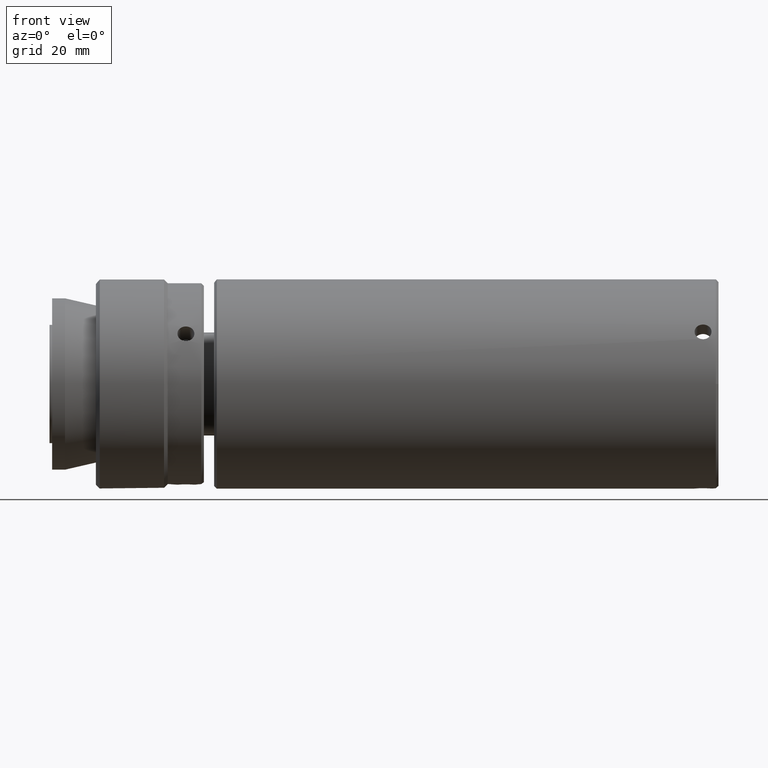
[diagram: clean part render]
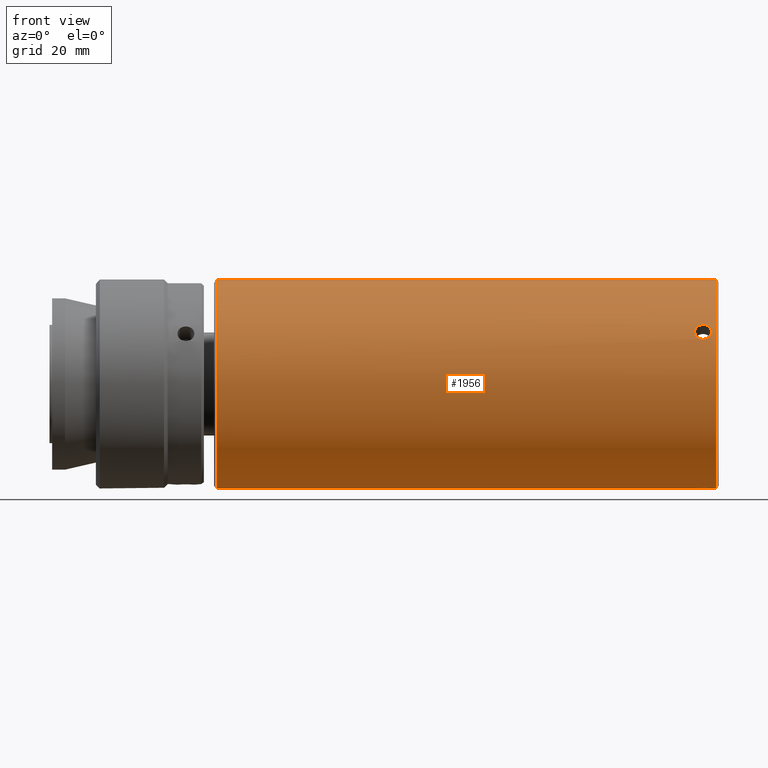
[diagram: same view with one face highlighted and labeled with its STEP entity id]
A machine part, front view. The second image highlights one B-rep face of the part: STEP entity #1956.
In plain terms, the highlighted cylindrical surface (bore or boss wall) has radius 20.32 mm, axis along (-1, -0, -0).
Its self-contained STEP definition (entity closure, byte-faithful):
#7 = CARTESIAN_POINT ( 'NONE',  ( 118.7072311837351322, 68.59737019679272407, 115.8449034724322360 ) ) ;
#12 = FACE_BOUND ( 'NONE', #929, .T. ) ;
#18 = CARTESIAN_POINT ( 'NONE',  ( 120.8718278882860631, 51.13147294982184832, 86.69250009352548147 ) ) ;
#20 = CARTESIAN_POINT ( 'NONE',  ( 118.1268657670961773, 68.38432158464294730, 116.2727497347218275 ) ) ;
#32 = CARTESIAN_POINT ( 'NONE',  ( 120.4467397029240914, 67.21070023097290402, 118.2703816317779655 ) ) ;
#35 = CARTESIAN_POINT ( 'NONE',  ( 119.9714690924201506, 33.54277087396467039, 118.4815909199031836 ) ) ;
#50 = CARTESIAN_POINT ( 'NONE',  ( 121.0894954226809119, 50.30531704458957165, 86.67589676093889750 ) ) ;
#62 = CARTESIAN_POINT ( 'NONE',  ( 121.0456642670792178, 49.87074476537179635, 86.67957502918582691 ) ) ;
#69 = CIRCLE ( 'NONE', #865, 20.32000000000000384 ) ;
#124 = DIRECTION ( 'NONE',  ( 1.000000000000000000, 0.000000000000000000, 0.000000000000000000 ) ) ;
#146 = CARTESIAN_POINT ( 'NONE',  ( 117.9565416238172588, 49.57385941143442665, 86.68882041243837477 ) ) ;
#160 = CARTESIAN_POINT ( 'NONE',  ( 118.4340700855504736, 51.61803545890843026, 86.71825480698016975 ) ) ;
#161 = CARTESIAN_POINT ( 'NONE',  ( 118.0075197720956481, 68.30192213605809570, 116.4316061374609319 ) ) ;
#176 = CARTESIAN_POINT ( 'NONE',  ( 117.9976874564484035, 32.30625612533258817, 116.4285868911196218 ) ) ;
#186 = CARTESIAN_POINT ( 'NONE',  ( 119.3304826352598553, 51.95531574260970586, 86.74299809688231733 ) ) ;
#190 = CARTESIAN_POINT ( 'NONE',  ( 120.8714710732661359, 32.30871195312121102, 116.4316061374611593 ) ) ;
#196 = CARTESIAN_POINT ( 'NONE',  ( 120.2707656055531942, 51.74671307544240051, 86.72691544217251192 ) ) ;
#203 = DIRECTION ( 'NONE',  ( -1.000000000000000000, -0.000000000000000000, -0.000000000000000000 ) ) ;
#212 = CARTESIAN_POINT ( 'NONE',  ( 119.0069658153588392, 68.65145305228138284, 115.7325212120407940 ) ) ;
#216 = CARTESIAN_POINT ( 'NONE',  ( 118.7077391347828410, 32.01315567742395274, 115.8446795564250920 ) ) ;
#225 = CARTESIAN_POINT ( 'NONE',  ( 118.3489080810597898, 33.36199345545057326, 118.2133895101488577 ) ) ;
#231 = CARTESIAN_POINT ( 'NONE',  ( 119.6575838506477396, 67.01984169607328568, 118.5512879561751589 ) ) ;
#272 = CARTESIAN_POINT ( 'NONE',  ( 24.93949542268093111, 50.30531704458957165, 127.3158967609388839 ) ) ;
#297 = DIRECTION ( 'NONE',  ( 0.000000000000000000, 0.000000000000000000, 1.000000000000000000 ) ) ;
#299 = ORIENTED_EDGE ( 'NONE', *, *, #1804, .T. ) ;
#317 = CARTESIAN_POINT ( 'NONE',  ( 119.0124976409045985, 51.90272840158696965, 86.73877163156006986 ) ) ;
#320 = CARTESIAN_POINT ( 'NONE',  ( 118.6129948270128409, 67.14320043448519471, 118.3709432283854852 ) ) ;
#342 = CARTESIAN_POINT ( 'NONE',  ( 119.6575796634431583, 31.94079217820274508, 115.6934036699249617 ) ) ;
#352 = CARTESIAN_POINT ( 'NONE',  ( 119.8666726719698232, 68.64718845520152968, 115.7411009028114393 ) ) ;
#357 = CARTESIAN_POINT ( 'NONE',  ( 118.6108225196016264, 33.46671426794760151, 118.3698778718645741 ) ) ;
#365 = CARTESIAN_POINT ( 'NONE',  ( 117.8333206490959526, 50.73986847267234168, 86.67957455436048519 ) ) ;
#366 = CARTESIAN_POINT ( 'NONE',  ( 120.8714716896812860, 67.47518419493671615, 117.8635583439184558 ) ) ;
#371 = FACE_BOUND ( 'NONE', #1859, .T. ) ;
#377 = CARTESIAN_POINT ( 'NONE',  ( 120.9230909573151109, 67.52672286603609564, 117.7817936761485385 ) ) ;
#380 = CARTESIAN_POINT ( 'NONE',  ( 119.8720250300029306, 31.95918103689791323, 115.7325212120409645 ) ) ;
#386 = CARTESIAN_POINT ( 'NONE',  ( 120.8813033889133806, 68.30437796384667593, 116.4285868911193802 ) ) ;
#389 = CARTESIAN_POINT ( 'NONE',  ( 117.7894208348721889, 32.76092232305857976, 117.2481258283786900 ) ) ;
#449 = VERTEX_POINT ( 'NONE', #2068 ) ;
#463 = AXIS2_PLACEMENT_3D ( 'NONE', #1957, #203, #1222 ) ;
#483 = CARTESIAN_POINT ( 'NONE',  ( 118.7077415013084760, 67.11466775622608338, 118.4129827765911216 ) ) ;
#492 = CARTESIAN_POINT ( 'NONE',  ( 118.4243992763405515, 48.98685960731095435, 86.71814326143562823 ) ) ;
#493 = CARTESIAN_POINT ( 'NONE',  ( 117.9559003655719351, 68.25688115327140792, 116.5171223548337167 ) ) ;
#504 = CARTESIAN_POINT ( 'NONE',  ( 120.6826289867723432, 51.39558386239109922, 86.70502386871670808 ) ) ;
#508 = CARTESIAN_POINT ( 'NONE',  ( 119.0069628222838674, 33.56610984304960255, 118.5158036839906828 ) ) ;
#516 = CARTESIAN_POINT ( 'NONE',  ( 119.2214111819185831, 68.66984191097647283, 115.6934036699248907 ) ) ;
#528 = CARTESIAN_POINT ( 'NONE',  ( 121.0369112455124849, 50.73229826936243114, 86.68010976198040396 ) ) ;
#529 = CARTESIAN_POINT ( 'NONE',  ( 121.0368068498771237, 67.68555912226949545, 117.5239918371575527 ) ) ;
#533 = CARTESIAN_POINT ( 'NONE',  ( 119.3304476231605378, 31.94079250056046249, 115.6934043505735445 ) ) ;
#539 = CARTESIAN_POINT ( 'NONE',  ( 119.6556698123283695, 48.66601275630760171, 86.74211876809039268 ) ) ;
#544 = CARTESIAN_POINT ( 'NONE',  ( 117.8330496369217144, 32.49404809526875226, 116.7785618110207793 ) ) ;
#554 = CARTESIAN_POINT ( 'NONE',  ( 121.0895700104896520, 67.84971176612071986, 117.2481258283783774 ) ) ;
#557 = CARTESIAN_POINT ( 'NONE',  ( 117.8421839954847172, 32.92507496690979707, 117.5239918371577801 ) ) ;
#626 = CARTESIAN_POINT ( 'NONE',  ( 117.8733160637268185, 68.16234517831325945, 116.6932642897763230 ) ) ;
#628 = CARTESIAN_POINT ( 'NONE',  ( 119.0123211888258083, 67.04982123387470949, 118.5078219593532367 ) ) ;
#632 = ORIENTED_EDGE ( 'NONE', *, *, #1833, .T. ) ;
#664 = CARTESIAN_POINT ( 'NONE',  ( 118.1267784325122818, 49.29988989082659145, 86.70058780051159886 ) ) ;
#665 = CARTESIAN_POINT ( 'NONE',  ( 117.7894208347638170, 67.95620530104763191, 117.0636736152249426 ) ) ;
#674 = CARTESIAN_POINT ( 'NONE',  ( 120.9224573967350125, 51.03675828489659949, 86.68881981399177050 ) ) ;
#675 = CARTESIAN_POINT ( 'NONE',  ( 121.0459412084400697, 68.11658599391053315, 116.7785618110204808 ) ) ;
#680 = FACE_OUTER_BOUND ( 'NONE', #1934, .T. ) ;
#692 = CARTESIAN_POINT ( 'NONE',  ( 119.6557528186057766, 33.58467859182457715, 118.5424586756731031 ) ) ;
#700 = CARTESIAN_POINT ( 'NONE',  ( 121.0893450459337970, 68.01116031139653728, 116.9684522105631999 ) ) ;
#704 = CARTESIAN_POINT ( 'NONE',  ( 121.0893450457171809, 32.81590920690327096, 117.3433293703231044 ) ) ;
#716 = CARTESIAN_POINT ( 'NONE',  ( 121.0459410824501276, 32.92764643970133420, 117.5295761518667064 ) ) ;
#722 = CARTESIAN_POINT ( 'NONE',  ( 120.2681683257601861, 67.14391982123171942, 118.3698778718643325 ) ) ;
#725 = CARTESIAN_POINT ( 'NONE',  ( 118.0075191556805549, 33.13544989424254794, 117.8635583439187258 ) ) ;
#800 = CARTESIAN_POINT ( 'NONE',  ( 121.9394954226808920, 50.30531704458957165, 127.3158967609388839 ) ) ;
#833 = CARTESIAN_POINT ( 'NONE',  ( 118.6133273032529445, 51.73764242043004202, 86.72635219610066315 ) ) ;
#845 = CARTESIAN_POINT ( 'NONE',  ( 119.2215311579888066, 48.65531444102606429, 86.74299841506618236 ) ) ;
#861 = CARTESIAN_POINT ( 'NONE',  ( 117.7896457994280013, 32.59947377778274813, 116.9684522105635267 ) ) ;
#865 = AXIS2_PLACEMENT_3D ( 'NONE', #2229, #1149, #297 ) ;
#868 = CARTESIAN_POINT ( 'NONE',  ( 120.5301782731784357, 68.49152023847582882, 116.0606758122832218 ) ) ;
#871 = B_SPLINE_CURVE_WITH_KNOTS ( 'NONE', 3,
 ( #1647, #1348, #1659, #628, #1673, #483, #320, #1464, #1694, #965, #1657, #1527, #1333, #665, #2188, #990, #626, #493, #161, #20, #1024, #1217, #904, #1050, #7, #212, #516, #1406, #1913, #352, #1037, #2109, #1737, #1772, #868, #1600, #386, #675, #700, #554, #2098, #529, #1232, #377, #366, #1062, #894, #1589, #32, #722, #1253, #1964, #231, #914 ),
 .UNSPECIFIED., .T., .F.,
 ( 4, 2, 2, 2, 2, 2, 2, 2, 2, 2, 2, 2, 2, 2, 2, 2, 2, 2, 2, 2, 2, 2, 2, 2, 2, 2, 4 ),
 ( 0.000000000000000000, 0.0003224790861425423454, 0.0006449581722850846908, 0.0009674372584276270904, 0.001289916344570169382, 0.001934874516855254181, 0.002579832689140338763, 0.002902311775282891571, 0.003224790861425443945, 0.003547269947567996753, 0.003869749033710548694, 0.004192228119853101502, 0.004514707205995654310, 0.005159665378280752987, 0.005482144464423301458, 0.005804623550565851664, 0.006127102636708400135, 0.006449581722850949474, 0.007094539895136034273, 0.007739498067421118205, 0.008061977153563680554, 0.008384456239706239433, 0.008706935325848800047, 0.009029414411991362396, 0.009351893498133923011, 0.009674372584276481890, 0.01031933075656159965 ),
 .UNSPECIFIED. ) ;
#874 = CARTESIAN_POINT ( 'NONE',  ( 120.1717596616266661, 32.01326389238654002, 115.8449034724324633 ) ) ;
#876 = ORIENTED_EDGE ( 'NONE', *, *, #2016, .T. ) ;
#880 = CARTESIAN_POINT ( 'NONE',  ( 118.3492194882549597, 51.54844255775852702, 86.71381512353968901 ) ) ;
#892 = CARTESIAN_POINT ( 'NONE',  ( 121.0894954226809261, 50.08732938884449482, 86.67589676093896855 ) ) ;
#894 = CARTESIAN_POINT ( 'NONE',  ( 120.6839874872470659, 67.33337132450473916, 118.0843468449278078 ) ) ;
#897 = CARTESIAN_POINT ( 'NONE',  ( 118.1268648295910992, 33.23182375909276942, 118.0143464374059050 ) ) ;
#904 = CARTESIAN_POINT ( 'NONE',  ( 118.4322528630535913, 68.52199954302345475, 115.9991444265320837 ) ) ;
#914 = CARTESIAN_POINT ( 'NONE',  ( 119.4394954226809205, 67.01984169607324304, 118.5512879561752015 ) ) ;
#929 = EDGE_LOOP ( 'NONE', ( #1678 ) ) ;
#956 = CARTESIAN_POINT ( 'NONE',  ( 119.4394954226809062, 33.59079239310604947, 118.5512879561754005 ) ) ;
#965 = CARTESIAN_POINT ( 'NONE',  ( 118.1206114225194170, 67.37421898642720919, 118.0221477082796042 ) ) ;
#990 = CARTESIAN_POINT ( 'NONE',  ( 117.8421841466998643, 68.11303616441469444, 116.7835798571910857 ) ) ;
#999 = CARTESIAN_POINT ( 'NONE',  ( 117.9980945368865406, 51.13657863601591202, 86.69193687347414823 ) ) ;
#1011 = CARTESIAN_POINT ( 'NONE',  ( 118.9077459708875608, 51.87101970908121729, 86.73626456699525988 ) ) ;
#1023 = CARTESIAN_POINT ( 'NONE',  ( 117.8001920772107383, 50.08913518645849905, 86.67677326894917655 ) ) ;
#1024 = CARTESIAN_POINT ( 'NONE',  ( 118.1950044796904535, 68.42222423546874666, 116.1983981419685108 ) ) ;
#1028 = CARTESIAN_POINT ( 'NONE',  ( 118.6129926773691636, 32.03529668859856372, 115.8904094168211572 ) ) ;
#1037 = CARTESIAN_POINT ( 'NONE',  ( 119.9714719282764861, 68.63349262923436811, 115.7698413802393134 ) ) ;
#1042 = FACE_BOUND ( 'NONE', #1834, .T. ) ;
#1050 = CARTESIAN_POINT ( 'NONE',  ( 118.6108246740796091, 68.57477556989132950, 115.8915628388127317 ) ) ;
#1055 = CARTESIAN_POINT ( 'NONE',  ( 119.0123181733919608, 31.96344563397773086, 115.7411009028116666 ) ) ;
#1062 = CARTESIAN_POINT ( 'NONE',  ( 120.7521260157706990, 67.37881033008653731, 118.0143464374056350 ) ) ;
#1065 = FACE_OUTER_BOUND ( 'NONE', #1893, .T. ) ;
#1073 = CARTESIAN_POINT ( 'NONE',  ( 117.9558998880467016, 33.08391122314318977, 117.7817936761487942 ) ) ;
#1078 = CARTESIAN_POINT ( 'NONE',  ( 120.4449120834299123, 48.99259207793586057, 86.71825523458485918 ) ) ;
#1123 = CARTESIAN_POINT ( 'NONE',  ( 24.93949542268093111, 50.30531704458957165, 106.9958967609388765 ) ) ;
#1149 = DIRECTION ( 'NONE',  ( -1.000000000000000000, -0.000000000000000000, -0.000000000000000000 ) ) ;
#1150 = CARTESIAN_POINT ( 'NONE',  ( 121.0894954226808977, 50.30531704458957165, 86.67589676093886908 ) ) ;
#1178 = CARTESIAN_POINT ( 'NONE',  ( 119.0049400278722231, 48.69914354262471079, 86.73930690394645637 ) ) ;
#1192 = CARTESIAN_POINT ( 'NONE',  ( 118.6082328714330600, 48.86391693342530118, 86.72691573888558025 ) ) ;
#1197 = CARTESIAN_POINT ( 'NONE',  ( 120.7583794228423955, 33.23641510275211175, 118.0221477082798032 ) ) ;
#1209 = CARTESIAN_POINT ( 'NONE',  ( 117.8001192016109684, 32.81635359110486405, 117.3423820547635898 ) ) ;
#1216 = CARTESIAN_POINT ( 'NONE',  ( 119.6574618725011163, 51.95531964819647186, 86.74299841506970665 ) ) ;
#1217 = CARTESIAN_POINT ( 'NONE',  ( 118.3489096313367810, 68.49161314177096926, 116.0604978054651184 ) ) ;
#1222 = DIRECTION ( 'NONE',  ( 0.000000000000000000, 0.000000000000000000, 1.000000000000000000 ) ) ;
#1230 = CARTESIAN_POINT ( 'NONE',  ( 120.5297623398878955, 49.06218371208611018, 86.71381560777498976 ) ) ;
#1232 = CARTESIAN_POINT ( 'NONE',  ( 121.0056750209583640, 67.63199812744205985, 117.6118523649155350 ) ) ;
#1235 = CARTESIAN_POINT ( 'NONE',  ( 120.4467379823082211, 32.08863454615580224, 115.9991444265323253 ) ) ;
#1244 = CARTESIAN_POINT ( 'NONE',  ( 121.0895700105979529, 32.65442878813161798, 117.0636736152251274 ) ) ;
#1250 = CARTESIAN_POINT ( 'NONE',  ( 120.8808873709592007, 49.47404051176854267, 86.69193751403474835 ) ) ;
#1253 = CARTESIAN_POINT ( 'NONE',  ( 120.1717620677204934, 67.11480890637191976, 118.4127751285856078 ) ) ;
#1333 = CARTESIAN_POINT ( 'NONE',  ( 117.7896457996446600, 67.79472488227602867, 117.3433293703228486 ) ) ;
#1348 = CARTESIAN_POINT ( 'NONE',  ( 119.3304512086975393, 67.01984169607322883, 118.5512879561752442 ) ) ;
#1357 = CARTESIAN_POINT ( 'NONE',  ( 118.1963712017711003, 49.21503968471964185, 86.70502444039320267 ) ) ;
#1364 = VERTEX_POINT ( 'NONE', #272 ) ;
#1373 = CARTESIAN_POINT ( 'NONE',  ( 121.0368066986619624, 32.49759792476457676, 116.7835798571913131 ) ) ;
#1387 = CARTESIAN_POINT ( 'NONE',  ( 120.5301767516192797, 33.36188725570936242, 118.2132223268987588 ) ) ;
#1395 = CARTESIAN_POINT ( 'NONE',  ( 121.0894954226809119, 50.30531704458957165, 86.67589676093889750 ) ) ;
#1399 = CARTESIAN_POINT ( 'NONE',  ( 120.8813028003603733, 33.13683789424859327, 117.8671966292693583 ) ) ;
#1405 = CARTESIAN_POINT ( 'NONE',  ( 119.2233188839721123, 51.94462112047604307, 86.74211875046495379 ) ) ;
#1406 = CARTESIAN_POINT ( 'NONE',  ( 119.5485432222012321, 68.66984158861880871, 115.6934043505732888 ) ) ;
#1410 = CARTESIAN_POINT ( 'NONE',  ( 119.5485396366642590, 33.59079239310603526, 118.5512879561754147 ) ) ;
#1417 = AXIS2_PLACEMENT_3D ( 'NONE', #1123, #124, #1515 ) ;
#1420 = CARTESIAN_POINT ( 'NONE',  ( 118.1950033581147750, 33.27726276467455335, 118.0843468449280493 ) ) ;
#1438 = CARTESIAN_POINT ( 'NONE',  ( 119.2214069947142292, 33.59079239310605658, 118.5512879561754147 ) ) ;
#1464 = CARTESIAN_POINT ( 'NONE',  ( 118.4336814301739338, 67.21007420423107703, 118.2713206803239103 ) ) ;
#1503 = VERTEX_POINT ( 'NONE', #1150 ) ;
#1515 = DIRECTION ( 'NONE',  ( 0.000000000000000000, 0.000000000000000000, 1.000000000000000000 ) ) ;
#1525 = CARTESIAN_POINT ( 'NONE',  ( 117.7894971550870622, 50.19629838249489495, 86.67589690161157989 ) ) ;
#1527 = CARTESIAN_POINT ( 'NONE',  ( 117.8330497629116707, 67.68298764947792279, 117.5295761518665074 ) ) ;
#1537 = CARTESIAN_POINT ( 'NONE',  ( 119.5485071173407334, 48.65531834654769483, 86.74299809688407947 ) ) ;
#1542 = CARTESIAN_POINT ( 'NONE',  ( 121.0056747816349372, 32.44828891086597622, 116.6932642897765646 ) ) ;
#1553 = CARTESIAN_POINT ( 'NONE',  ( 120.2681661712820755, 32.03585851928792749, 115.8915628388129875 ) ) ;
#1567 = CARTESIAN_POINT ( 'NONE',  ( 118.9075189170853974, 31.97714145994492441, 115.7698413802395834 ) ) ;
#1570 = ORIENTED_EDGE ( 'NONE', *, *, #1917, .T. ) ;
#1580 = CYLINDRICAL_SURFACE ( 'NONE', #463, 20.32000000000000384 ) ;
#1586 = CARTESIAN_POINT ( 'NONE',  ( 120.2656560451238761, 48.87298742969208831, 86.72635249907443722 ) ) ;
#1589 = CARTESIAN_POINT ( 'NONE',  ( 120.5300827643020511, 67.24864063372871215, 118.2133895101486019 ) ) ;
#1592 = CARTESIAN_POINT ( 'NONE',  ( 120.4453094151878361, 33.40055988494821548, 118.2713206803240951 ) ) ;
#1600 = CARTESIAN_POINT ( 'NONE',  ( 120.7583803413992030, 68.38878086720674787, 116.2648751087469066 ) ) ;
#1608 = CARTESIAN_POINT ( 'NONE',  ( 120.7579432496441569, 49.29020864637550403, 86.70069682392181676 ) ) ;
#1614 = EDGE_CURVE ( 'NONE', #1503, #1503, #2163, .T. ) ;
#1617 = CARTESIAN_POINT ( 'NONE',  ( 120.1709431884433883, 48.82235842906602841, 86.73003987931535619 ) ) ;
#1647 = CARTESIAN_POINT ( 'NONE',  ( 119.4394954226809205, 67.01984169607324304, 118.5512879561752015 ) ) ;
#1657 = CARTESIAN_POINT ( 'NONE',  ( 117.9976880450014107, 67.47379619493067082, 117.8671966292691593 ) ) ;
#1659 = CARTESIAN_POINT ( 'NONE',  ( 119.2232380267560927, 67.02595549735471536, 118.5424586756729326 ) ) ;
#1664 = VERTEX_POINT ( 'NONE', #956 ) ;
#1673 = CARTESIAN_POINT ( 'NONE',  ( 118.9075217529417046, 67.06786321521461502, 118.4815909199029136 ) ) ;
#1678 = ORIENTED_EDGE ( 'NONE', *, *, #1614, .T. ) ;
#1681 = B_SPLINE_CURVE_WITH_KNOTS ( 'NONE', 3,
 ( #1741, #1410, #692, #1752, #35, #2253, #2240, #1592, #1387, #1197, #1399, #716, #704, #1244, #1944, #1373, #1542, #1763, #190, #1929, #1903, #2102, #1235, #1553, #874, #380, #342, #533, #1775, #1055, #1567, #216, #1028, #2112, #1726, #2092, #176, #544, #861, #389, #1209, #557, #2123, #1073, #725, #897, #1420, #225, #1918, #357, #2079, #508, #1438, #2166 ),
 .UNSPECIFIED., .T., .F.,
 ( 4, 2, 2, 2, 2, 2, 2, 2, 2, 2, 2, 2, 2, 2, 2, 2, 2, 2, 2, 2, 2, 2, 2, 2, 2, 2, 4 ),
 ( 0.000000000000000000, 0.0003224790861425724320, 0.0006449581722851448640, 0.0009674372584277171876, 0.001289916344570289728, 0.001934874516855380599, 0.002579832689140471470, 0.002902311775283016905, 0.003224790861425562340, 0.003547269947568108209, 0.003869749033710653645, 0.004192228119853198647, 0.004514707205995744516, 0.005159665378280831917, 0.005482144464423375184, 0.005804623550565919318, 0.006127102636708462585, 0.006449581722851006720, 0.007094539895136059426, 0.007739498067421109531, 0.008061977153563658002, 0.008384456239706208208, 0.008706935325848758414, 0.009029414411991308620, 0.009351893498133857091, 0.009674372584276407297, 0.01031933075656149210 ),
 .UNSPECIFIED. ) ;
#1692 = CARTESIAN_POINT ( 'NONE',  ( 117.8737941042224691, 49.77356369947305126, 86.68261001376558283 ) ) ;
#1694 = CARTESIAN_POINT ( 'NONE',  ( 118.3488140937425754, 67.24874683346993720, 118.2132223268986024 ) ) ;
#1699 = VERTEX_POINT ( 'NONE', #800 ) ;
#1709 = CARTESIAN_POINT ( 'NONE',  ( 117.7894919584932154, 50.52327569928647932, 86.67589647964418020 ) ) ;
#1721 = CARTESIAN_POINT ( 'NONE',  ( 120.4546003137231338, 51.62376811643910912, 86.71814282662930395 ) ) ;
#1726 = CARTESIAN_POINT ( 'NONE',  ( 118.3488125721833910, 32.11911385070344949, 116.0606758122835203 ) ) ;
#1736 = CARTESIAN_POINT ( 'NONE',  ( 119.8740551164379724, 51.91148967144277293, 86.73930682800572356 ) ) ;
#1737 = CARTESIAN_POINT ( 'NONE',  ( 120.2659981679926489, 68.57533740058070748, 115.8904094168209440 ) ) ;
#1741 = CARTESIAN_POINT ( 'NONE',  ( 119.4394954226809062, 33.59079239310604237, 118.5512879561754289 ) ) ;
#1752 = CARTESIAN_POINT ( 'NONE',  ( 119.8666696565360041, 33.56081285530458302, 118.5078219593534072 ) ) ;
#1763 = CARTESIAN_POINT ( 'NONE',  ( 120.9230904797898205, 32.35375293590785617, 116.5171223548339725 ) ) ;
#1772 = CARTESIAN_POINT ( 'NONE',  ( 120.4453111567222976, 68.52249857940465461, 115.9981351560032294 ) ) ;
#1775 = CARTESIAN_POINT ( 'NONE',  ( 119.2232346344054150, 31.94538207013404474, 115.7031138858424981 ) ) ;
#1781 = CARTESIAN_POINT ( 'NONE',  ( 119.9712396612891609, 48.73961268101982824, 86.73626469992396437 ) ) ;
#1795 = CARTESIAN_POINT ( 'NONE',  ( 119.8664890129554976, 48.70790464004794273, 86.73877171460050306 ) ) ;
#1804 = EDGE_CURVE ( 'NONE', #1364, #1364, #1935, .T. ) ;
#1833 = EDGE_CURVE ( 'NONE', #449, #449, #871, .T. ) ;
#1834 = EDGE_LOOP ( 'NONE', ( #876 ) ) ;
#1859 = EDGE_LOOP ( 'NONE', ( #632 ) ) ;
#1886 = CARTESIAN_POINT ( 'NONE',  ( 118.1210381801663800, 51.32041365003214395, 86.70069621420660155 ) ) ;
#1893 = EDGE_LOOP ( 'NONE', ( #299 ) ) ;
#1903 = CARTESIAN_POINT ( 'NONE',  ( 120.6839863656712879, 32.18840985371048902, 116.1983981419687808 ) ) ;
#1913 = CARTESIAN_POINT ( 'NONE',  ( 119.6557562109564259, 68.66525201904525488, 115.7031138858421997 ) ) ;
#1917 = EDGE_CURVE ( 'NONE', #1699, #1699, #69, .T. ) ;
#1918 = CARTESIAN_POINT ( 'NONE',  ( 118.4322511424376927, 33.39993385820643113, 118.2703816317781644 ) ) ;
#1925 = CARTESIAN_POINT ( 'NONE',  ( 118.7080408578549822, 51.78827238197300176, 86.73003963781678749 ) ) ;
#1929 = CARTESIAN_POINT ( 'NONE',  ( 120.7521250782655926, 32.22631250453631679, 116.2727497347219838 ) ) ;
#1934 = EDGE_LOOP ( 'NONE', ( #1570 ) ) ;
#1935 = CIRCLE ( 'NONE', #1417, 20.32000000000000384 ) ;
#1944 = CARTESIAN_POINT ( 'NONE',  ( 121.0788716123994533, 32.60051605835793964, 116.9685404766833869 ) ) ;
#1956 = ADVANCED_FACE ( 'NONE', ( #12, #1065, #680, #371, #1042 ), #1580, .T. ) ;
#1957 = CARTESIAN_POINT ( 'NONE',  ( 14.25253776187324029, 50.30531704458957165, 106.9958967609388765 ) ) ;
#1964 = CARTESIAN_POINT ( 'NONE',  ( 119.8720280230779736, 67.04452424612968287, 118.5158036839904696 ) ) ;
#2016 = EDGE_CURVE ( 'NONE', #1664, #1664, #1681, .T. ) ;
#2062 = CARTESIAN_POINT ( 'NONE',  ( 121.0894954226808977, 50.41431087246210296, 86.67589676093886908 ) ) ;
#2068 = CARTESIAN_POINT ( 'NONE',  ( 119.4394954226809062, 67.01984169607324304, 118.5512879561751873 ) ) ;
#2074 = CARTESIAN_POINT ( 'NONE',  ( 121.0052034972533761, 50.83705074648455735, 86.68260949157944140 ) ) ;
#2079 = CARTESIAN_POINT ( 'NONE',  ( 118.7072287776413049, 33.49582518280736565, 118.4127751285857784 ) ) ;
#2092 = CARTESIAN_POINT ( 'NONE',  ( 118.1206105039625953, 32.22185322197253754, 116.2648751087471908 ) ) ;
#2097 = CARTESIAN_POINT ( 'NONE',  ( 121.0788019345778110, 50.52147540643029089, 86.67677301221476682 ) ) ;
#2098 = CARTESIAN_POINT ( 'NONE',  ( 121.0788716437508157, 67.79428049807442846, 117.3423820547633625 ) ) ;
#2102 = CARTESIAN_POINT ( 'NONE',  ( 120.5300812140249889, 32.11902094740828773, 116.0604978054653458 ) ) ;
#2107 = CARTESIAN_POINT ( 'NONE',  ( 117.8420852525189133, 49.87831493391841775, 86.68011020771892561 ) ) ;
#2109 = CARTESIAN_POINT ( 'NONE',  ( 120.1712517105789715, 68.59747841175533267, 115.8446795564248362 ) ) ;
#2112 = CARTESIAN_POINT ( 'NONE',  ( 118.4336796886395717, 32.08813550977465212, 115.9981351560034284 ) ) ;
#2123 = CARTESIAN_POINT ( 'NONE',  ( 117.8733158244034627, 32.97863596173724687, 117.6118523649158192 ) ) ;
#2163 = B_SPLINE_CURVE_WITH_KNOTS ( 'NONE', 3,
 ( #1395, #2062, #2097, #528, #2074, #674, #18, #2235, #504, #1721, #196, #1736, #1216, #186, #1405, #317, #1011, #1925, #833, #160, #880, #1886, #999, #365, #1709, #1525, #1023, #2107, #1692, #146, #2223, #664, #1357, #492, #1192, #1178, #845, #1537, #539, #1795, #1781, #1617, #1586, #1078, #1230, #1608, #1250, #62, #892, #50 ),
 .UNSPECIFIED., .T., .F.,
 ( 4, 2, 2, 2, 2, 2, 2, 2, 2, 2, 2, 2, 2, 2, 2, 2, 2, 2, 2, 2, 2, 2, 2, 2, 4 ),
 ( 0.000000000000000000, 0.0003223301824906057555, 0.0006446603649812115110, 0.0009669905474718171580, 0.001289320729962423022, 0.001933981094943636051, 0.002578641459924849080, 0.002900971642415435536, 0.003223301824906021993, 0.003545632007396608016, 0.003867962189887194473, 0.004512622554868397744, 0.005157282919849601015, 0.005479613102340201783, 0.005801943284830803418, 0.006124273467321404187, 0.006446603649812006689, 0.007091264014793209093, 0.007735924379774412364, 0.008058254562265033949, 0.008380584744755656401, 0.008702914927246277119, 0.009025245109736899571, 0.009669905474718156618, 0.01031456583969941540 ),
 .UNSPECIFIED. ) ;
#2166 = CARTESIAN_POINT ( 'NONE',  ( 119.4394954226809062, 33.59079239310604237, 118.5512879561754289 ) ) ;
#2188 = CARTESIAN_POINT ( 'NONE',  ( 117.8001192329623734, 68.01011803082133156, 116.9685404766831454 ) ) ;
#2223 = CARTESIAN_POINT ( 'NONE',  ( 118.0071716207494461, 49.47914624855403787, 86.69250070568499211 ) ) ;
#2229 = CARTESIAN_POINT ( 'NONE',  ( 121.9394954226808920, 50.30531704458957165, 106.9958967609388765 ) ) ;
#2235 = CARTESIAN_POINT ( 'NONE',  ( 120.7522217345462678, 51.31073213394965649, 86.70058719660431734 ) ) ;
#2240 = CARTESIAN_POINT ( 'NONE',  ( 120.2659960183490711, 33.46743365469410492, 118.3709432283856984 ) ) ;
#2253 = CARTESIAN_POINT ( 'NONE',  ( 120.1712493440533365, 33.49596633295320913, 118.4129827765913205 ) ) ;